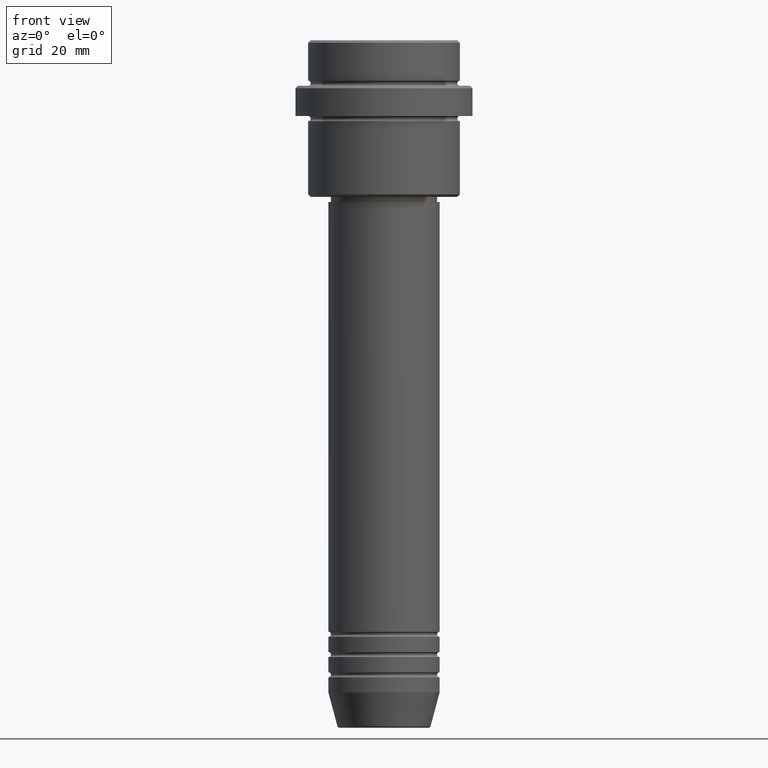
[diagram: clean part render]
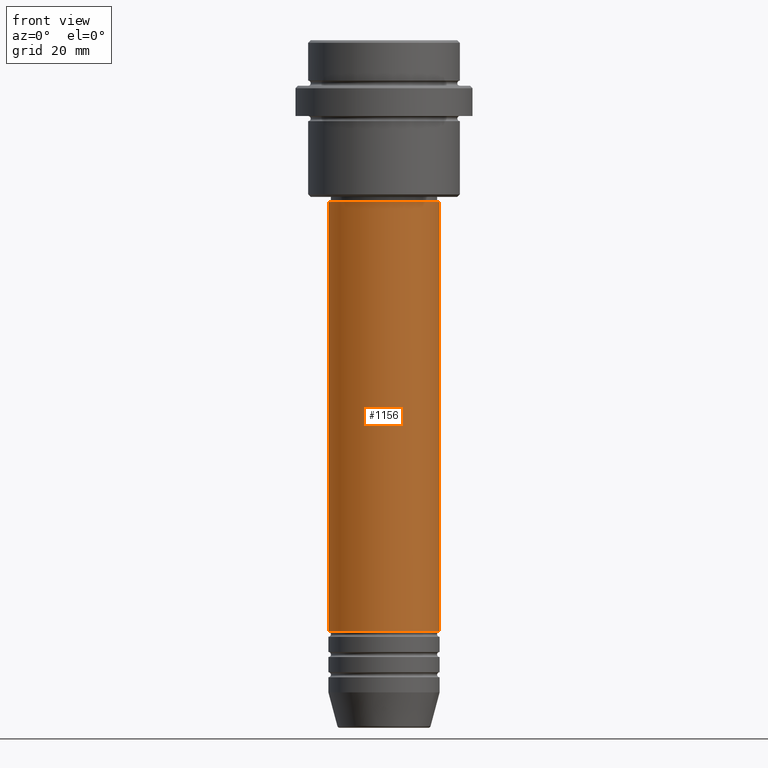
[diagram: same view with one face highlighted and labeled with its STEP entity id]
A machine part, front view. The second image highlights one B-rep face of the part: STEP entity #1156.
In plain terms, the highlighted cylindrical surface (partial cylindrical patch) has radius 11 mm, axis along (-0, -0, 1).
Its self-contained STEP definition (entity closure, byte-faithful):
#30 = VECTOR ( 'NONE', #52, 1000.000000000000000 ) ;
#33 = DIRECTION ( 'NONE',  ( -0.000000000000000000, -0.000000000000000000, 1.000000000000000000 ) ) ;
#52 = DIRECTION ( 'NONE',  ( -0.000000000000000000, -0.000000000000000000, 1.000000000000000000 ) ) ;
#66 = CARTESIAN_POINT ( 'NONE',  ( 11.00000000000000000, 0.000000000000000000, 0.000000000000000000 ) ) ;
#116 = LINE ( 'NONE', #777, #1163 ) ;
#117 = CIRCLE ( 'NONE', #1235, 11.00000000000000000 ) ;
#139 = EDGE_CURVE ( 'NONE', #490, #1027, #730, .T. ) ;
#226 = AXIS2_PLACEMENT_3D ( 'NONE', #615, #916, #729 ) ;
#228 = CARTESIAN_POINT ( 'NONE',  ( -11.00000000000000000, 1.347111479062088405E-15, -116.9999999999999005 ) ) ;
#237 = CARTESIAN_POINT ( 'NONE',  ( 0.000000000000000000, 0.000000000000000000, 0.000000000000000000 ) ) ;
#272 = ORIENTED_EDGE ( 'NONE', *, *, #679, .T. ) ;
#288 = EDGE_CURVE ( 'NONE', #1191, #490, #116, .T. ) ;
#396 = ORIENTED_EDGE ( 'NONE', *, *, #288, .F. ) ;
#397 = EDGE_CURVE ( 'NONE', #1191, #1283, #117, .T. ) ;
#452 = FACE_OUTER_BOUND ( 'NONE', #1261, .T. ) ;
#490 = VERTEX_POINT ( 'NONE', #912 ) ;
#604 = CARTESIAN_POINT ( 'NONE',  ( 10.99999999999999822, 0.000000000000000000, -32.00000000000000000 ) ) ;
#615 = CARTESIAN_POINT ( 'NONE',  ( 0.000000000000000000, 0.000000000000000000, -32.00000000000000000 ) ) ;
#618 = CARTESIAN_POINT ( 'NONE',  ( 11.00000000000000000, 0.000000000000000000, -116.9999999999999005 ) ) ;
#674 = CARTESIAN_POINT ( 'NONE',  ( 0.000000000000000000, 0.000000000000000000, -116.9999999999999005 ) ) ;
#679 = EDGE_CURVE ( 'NONE', #1283, #1027, #1253, .T. ) ;
#698 = CYLINDRICAL_SURFACE ( 'NONE', #1325, 11.00000000000000000 ) ;
#729 = DIRECTION ( 'NONE',  ( 1.000000000000000000, 0.000000000000000000, 0.000000000000000000 ) ) ;
#730 = CIRCLE ( 'NONE', #226, 10.99999999999999822 ) ;
#777 = CARTESIAN_POINT ( 'NONE',  ( -11.00000000000000000, 1.347111479062088405E-15, 0.000000000000000000 ) ) ;
#893 = DIRECTION ( 'NONE',  ( -0.000000000000000000, -0.000000000000000000, 1.000000000000000000 ) ) ;
#902 = ORIENTED_EDGE ( 'NONE', *, *, #397, .T. ) ;
#912 = CARTESIAN_POINT ( 'NONE',  ( -10.99999999999999822, 1.347111479062088207E-15, -32.00000000000000000 ) ) ;
#916 = DIRECTION ( 'NONE',  ( -0.000000000000000000, -0.000000000000000000, 1.000000000000000000 ) ) ;
#977 = ORIENTED_EDGE ( 'NONE', *, *, #139, .F. ) ;
#1026 = DIRECTION ( 'NONE',  ( 1.000000000000000000, 0.000000000000000000, 0.000000000000000000 ) ) ;
#1027 = VERTEX_POINT ( 'NONE', #604 ) ;
#1109 = DIRECTION ( 'NONE',  ( 1.000000000000000000, 0.000000000000000000, 0.000000000000000000 ) ) ;
#1132 = DIRECTION ( 'NONE',  ( -0.000000000000000000, -0.000000000000000000, 1.000000000000000000 ) ) ;
#1156 = ADVANCED_FACE ( 'NONE', ( #452 ), #698, .T. ) ;
#1163 = VECTOR ( 'NONE', #33, 1000.000000000000000 ) ;
#1191 = VERTEX_POINT ( 'NONE', #228 ) ;
#1235 = AXIS2_PLACEMENT_3D ( 'NONE', #674, #893, #1109 ) ;
#1253 = LINE ( 'NONE', #66, #30 ) ;
#1261 = EDGE_LOOP ( 'NONE', ( #396, #902, #272, #977 ) ) ;
#1283 = VERTEX_POINT ( 'NONE', #618 ) ;
#1325 = AXIS2_PLACEMENT_3D ( 'NONE', #237, #1132, #1026 ) ;